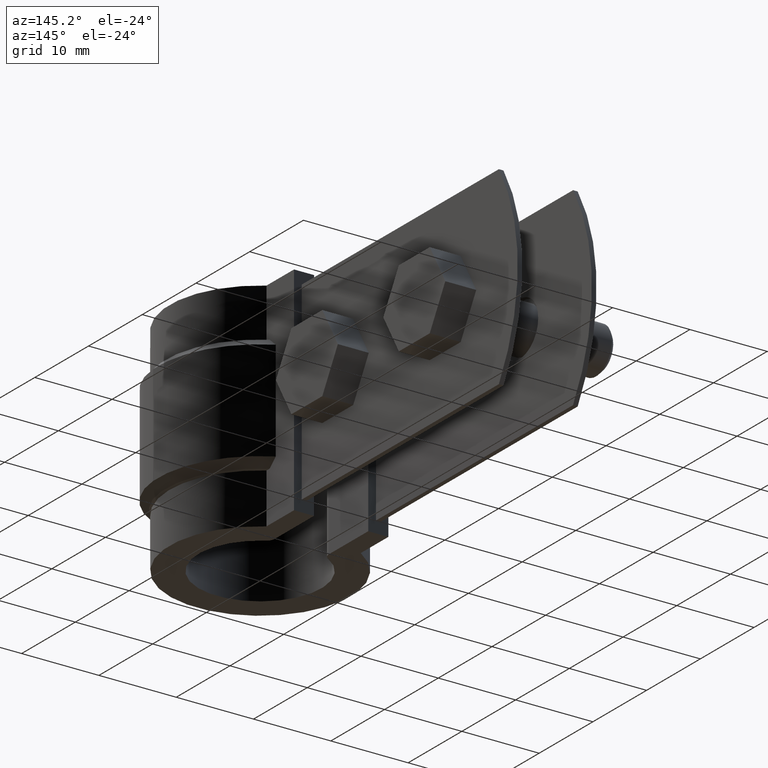
[diagram: clean part render]
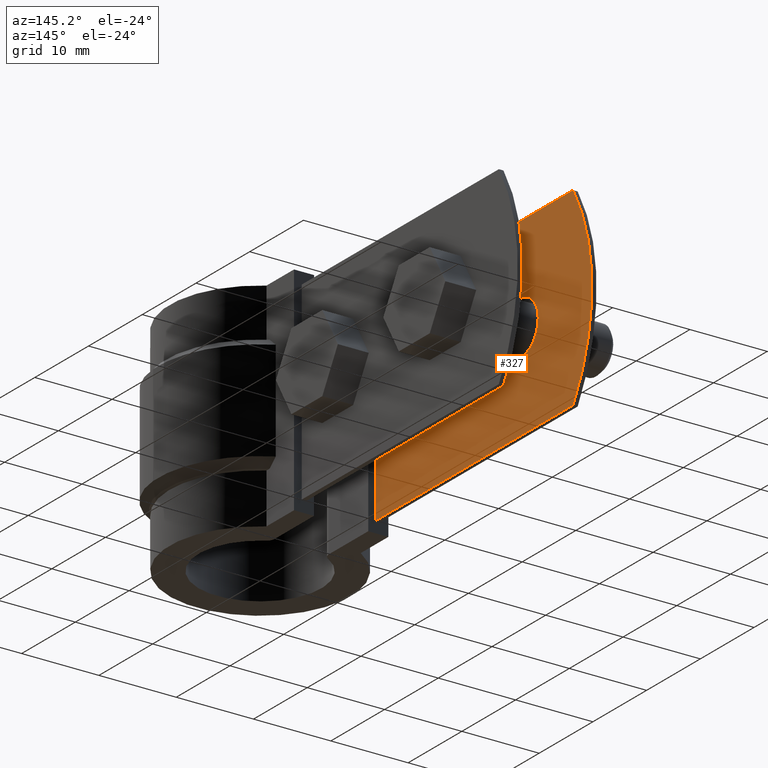
[diagram: same view with one face highlighted and labeled with its STEP entity id]
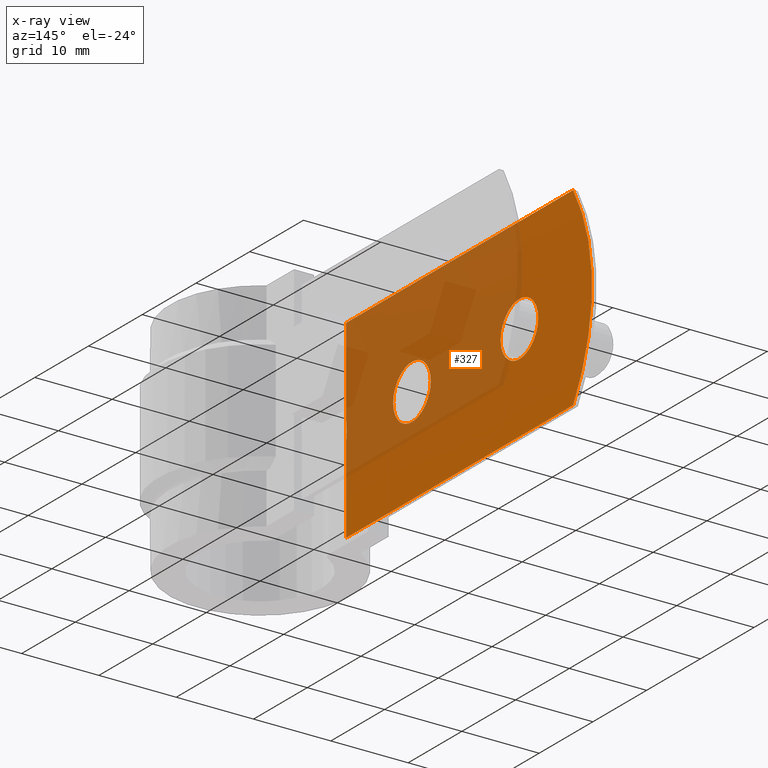
[diagram: x-ray of the same camera — body ghosted, the highlighted face saturated]
A machine part, auxiliary view. The second image highlights one B-rep face of the part: STEP entity #327.
The next image is the same camera in x-ray: the body ghosted, the highlighted face saturated — about 50% of this face is hidden behind the body in this view.
In plain terms, the highlighted planar face has unit normal (1, -0, 0).
Its self-contained STEP definition (entity closure, byte-faithful):
#327 = ADVANCED_FACE( '', ( #532, #533, #534 ), #535, .T. );
#532 = FACE_OUTER_BOUND( '', #942, .T. );
#533 = FACE_BOUND( '', #943, .T. );
#534 = FACE_BOUND( '', #944, .T. );
#535 = PLANE( '', #945 );
#942 = EDGE_LOOP( '', ( #2320, #2321, #2322, #2323, #2324, #2325 ) );
#943 = EDGE_LOOP( '', ( #2326 ) );
#944 = EDGE_LOOP( '', ( #2327 ) );
#945 = AXIS2_PLACEMENT_3D( '', #2328, #2329, #2330 );
#2320 = ORIENTED_EDGE( '', *, *, #4437, .T. );
#2321 = ORIENTED_EDGE( '', *, *, #4438, .T. );
#2322 = ORIENTED_EDGE( '', *, *, #4439, .F. );
#2323 = ORIENTED_EDGE( '', *, *, #4440, .T. );
#2324 = ORIENTED_EDGE( '', *, *, #4402, .T. );
#2325 = ORIENTED_EDGE( '', *, *, #4427, .T. );
#2326 = ORIENTED_EDGE( '', *, *, #4441, .T. );
#2327 = ORIENTED_EDGE( '', *, *, #4442, .T. );
#2328 = CARTESIAN_POINT( '', ( -4.50000000000000, 55.2954761014033, 0.000000000000000 ) );
#2329 = DIRECTION( '', ( 1.00000000000000, -6.12303176911189E-017, 0.000000000000000 ) );
#2330 = DIRECTION( '', ( -6.12303176911189E-017, -1.00000000000000, 0.000000000000000 ) );
#4402 = EDGE_CURVE( '', #4913, #4930, #4932, .T. );
#4427 = EDGE_CURVE( '', #4930, #4974, #4976, .T. );
#4437 = EDGE_CURVE( '', #4974, #4991, #4992, .T. );
#4438 = EDGE_CURVE( '', #4991, #4993, #4994, .T. );
#4439 = EDGE_CURVE( '', #4995, #4993, #4996, .T. );
#4440 = EDGE_CURVE( '', #4995, #4913, #4997, .T. );
#4441 = EDGE_CURVE( '', #4998, #4998, #4999, .F. );
#4442 = EDGE_CURVE( '', #5000, #5000, #5001, .F. );
#4913 = VERTEX_POINT( '', #5848 );
#4930 = VERTEX_POINT( '', #5870 );
#4932 = LINE( '', #5872, #5873 );
#4974 = VERTEX_POINT( '', #6157 );
#4976 = LINE( '', #6172, #6173 );
#4991 = VERTEX_POINT( '', #6193 );
#4992 = B_SPLINE_CURVE_WITH_KNOTS( '', 3, ( #6194, #6195, #6196, #6197, #6198 ), .UNSPECIFIED., .F., .F., ( 4, 1, 4 ), ( 1.99493199737333E-016, 0.00106141253973215, 0.00212282507946412 ), .UNSPECIFIED. );
#4993 = VERTEX_POINT( '', #6199 );
#4994 = LINE( '', #6200, #6201 );
#4995 = VERTEX_POINT( '', #6202 );
#4996 = LINE( '', #6203, #6204 );
#4997 = CIRCLE( '', #6205, 24.0000000000000 );
#4998 = VERTEX_POINT( '', #6206 );
#4999 = CIRCLE( '', #6207, 3.50000000000000 );
#5000 = VERTEX_POINT( '', #6208 );
#5001 = CIRCLE( '', #6209, 3.50000000000000 );
#5848 = CARTESIAN_POINT( '', ( -4.50000000000000, 51.7832773499512, 0.000000000000000 ) );
#5870 = CARTESIAN_POINT( '', ( -4.50000000000000, 9.54618248306619, 0.000000000000000 ) );
#5872 = CARTESIAN_POINT( '', ( -4.50000000000000, 55.2954761014033, 0.000000000000000 ) );
#5873 = VECTOR( '', #8275, 1000.00000000000 );
#6157 = CARTESIAN_POINT( '', ( -4.50000000000002, 9.54618248306622, -11.4385874602682 ) );
#6172 = CARTESIAN_POINT( '', ( -4.50000000000000, 9.54618248306619, 0.000000000000000 ) );
#6173 = VECTOR( '', #8283, 1000.00000000000 );
#6193 = CARTESIAN_POINT( '', ( -4.50000000000002, 9.54618248306618, -13.5614125397321 ) );
#6194 = CARTESIAN_POINT( '', ( -4.49999999999992, 9.54618248306622, -11.4385874602680 ) );
#6195 = CARTESIAN_POINT( '', ( -4.49999999999992, 9.60932021031332, -11.7887105883116 ) );
#6196 = CARTESIAN_POINT( '', ( -4.49999999999992, 9.67379157176177, -12.5000000000000 ) );
#6197 = CARTESIAN_POINT( '', ( -4.49999999999992, 9.60932021031332, -13.2112894116884 ) );
#6198 = CARTESIAN_POINT( '', ( -4.49999999999992, 9.54618248306622, -13.5614125397321 ) );
#6199 = CARTESIAN_POINT( '', ( -4.50000000000000, 9.54618248306619, -25.0000000000000 ) );
#6200 = CARTESIAN_POINT( '', ( -4.50000000000000, 9.54618248306619, 0.000000000000000 ) );
#6201 = VECTOR( '', #8301, 1000.00000000000 );
#6202 = CARTESIAN_POINT( '', ( -4.50000000000000, 51.7832773499512, -25.0000000000000 ) );
#6203 = CARTESIAN_POINT( '', ( -4.50000000000000, 55.2954761014033, -25.0000000000000 ) );
#6204 = VECTOR( '', #8302, 1000.00000000000 );
#6205 = AXIS2_PLACEMENT_3D( '', #8303, #8304, #8305 );
#6206 = CARTESIAN_POINT( '', ( -4.50000000000000, 45.2954761014033, -12.5000000000000 ) );
#6207 = AXIS2_PLACEMENT_3D( '', #8306, #8307, #8308 );
#6208 = CARTESIAN_POINT( '', ( -4.50000000000000, 25.2954761014033, -12.5000000000000 ) );
#6209 = AXIS2_PLACEMENT_3D( '', #8309, #8310, #8311 );
#8275 = DIRECTION( '', ( -6.12303176911189E-017, -1.00000000000000, 0.000000000000000 ) );
#8283 = DIRECTION( '', ( 0.000000000000000, 0.000000000000000, -1.00000000000000 ) );
#8301 = DIRECTION( '', ( 0.000000000000000, 0.000000000000000, -1.00000000000000 ) );
#8302 = DIRECTION( '', ( -6.12303176911189E-017, -1.00000000000000, 0.000000000000000 ) );
#8303 = CARTESIAN_POINT( '', ( -4.50000000000000, 31.2954761014033, -12.5000000000000 ) );
#8304 = DIRECTION( '', ( 1.00000000000000, -6.12303176911189E-017, 0.000000000000000 ) );
#8305 = DIRECTION( '', ( 6.12303176911189E-017, 1.00000000000000, 0.000000000000000 ) );
#8306 = CARTESIAN_POINT( '', ( -4.50000000000000, 41.7954761014033, -12.5000000000000 ) );
#8307 = DIRECTION( '', ( 1.00000000000000, -6.12303176911189E-017, 0.000000000000000 ) );
#8308 = DIRECTION( '', ( 6.12303176911189E-017, 1.00000000000000, 0.000000000000000 ) );
#8309 = CARTESIAN_POINT( '', ( -4.50000000000000, 21.7954761014033, -12.5000000000000 ) );
#8310 = DIRECTION( '', ( 1.00000000000000, -6.12303176911189E-017, 0.000000000000000 ) );
#8311 = DIRECTION( '', ( 6.12303176911189E-017, 1.00000000000000, 0.000000000000000 ) );